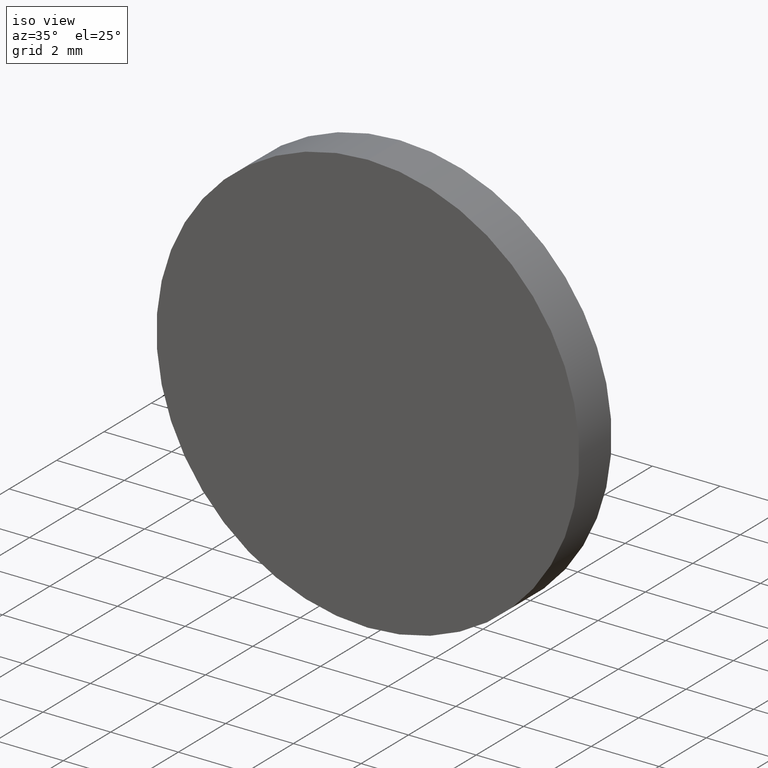
[diagram: clean part render]
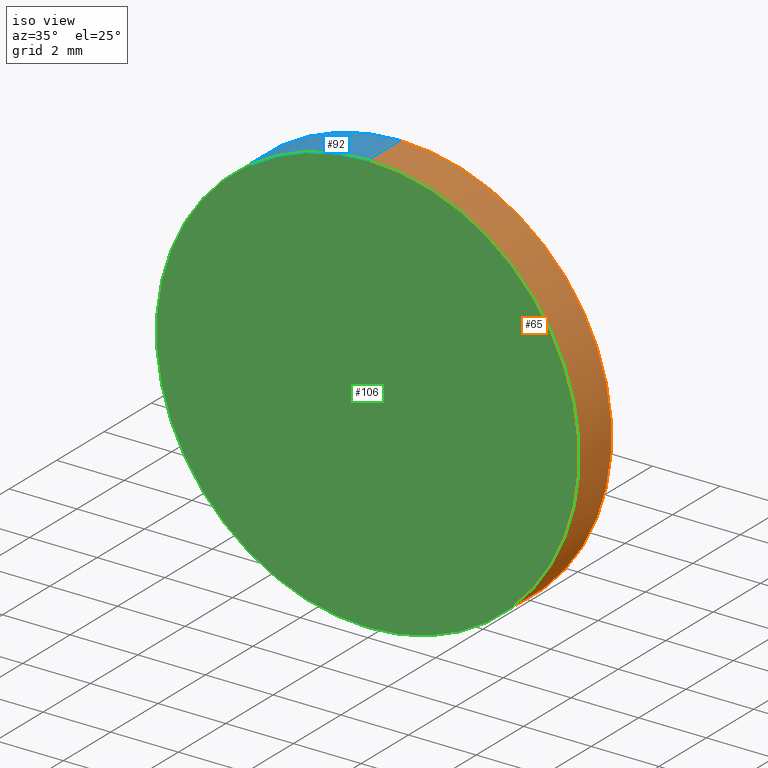
[diagram: same view with three faces highlighted in distinct colors, each labeled with its STEP entity id]
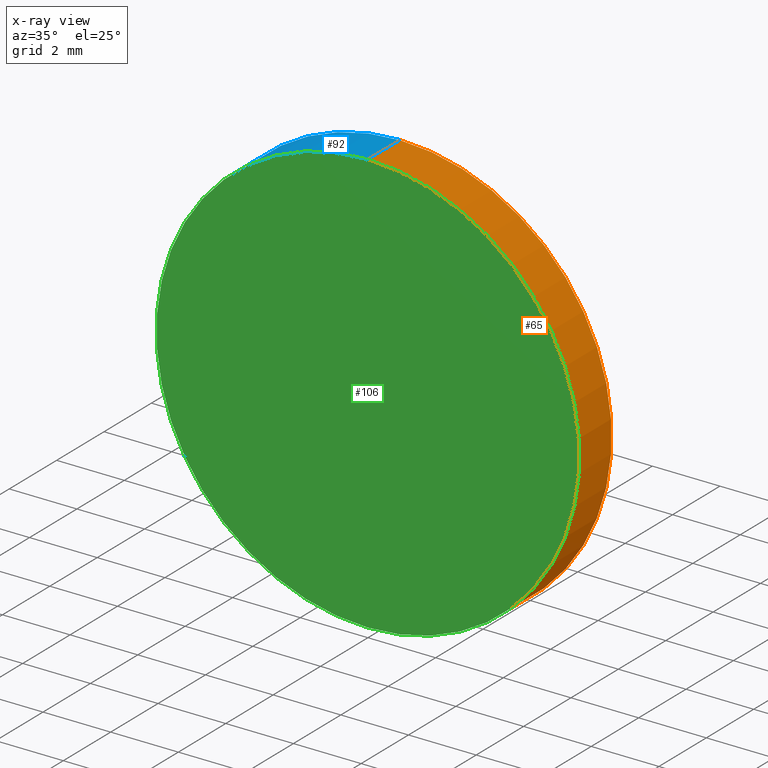
[diagram: x-ray of the same camera — body ghosted, the three highlighted faces saturated]
A machine part, iso view with three faces highlighted in distinct colors.
The next image is the same camera in x-ray (body ghosted, the three faces saturated) — at least one of them is partly hidden behind the body in this view.
Their STEP definitions:

[orange] entity #65 — the highlighted cylindrical surface (partial cylindrical patch) has radius 6.25 mm, axis along (-0, -1, -0).
#2 = VERTEX_POINT ( 'NONE', #96 ) ;
#7 = EDGE_LOOP ( 'NONE', ( #26, #88, #37, #138 ) ) ;
#11 = DIRECTION ( 'NONE',  ( 0.0000000000000000000, 0.0000000000000000000, 1.000000000000000000 ) ) ;
#14 = CARTESIAN_POINT ( 'NONE',  ( 7.654042494670957600E-016, 1.360000000000000100, 6.250000000000000000 ) ) ;
#17 = CIRCLE ( 'NONE', #69, 6.250000000000000000 ) ;
#24 = CARTESIAN_POINT ( 'NONE',  ( 0.0000000000000000000, 1.360000000000000100, 0.0000000000000000000 ) ) ;
#26 = ORIENTED_EDGE ( 'NONE', *, *, #73, .F. ) ;
#32 = DIRECTION ( 'NONE',  ( 0.0000000000000000000, 1.000000000000000000, 0.0000000000000000000 ) ) ;
#34 = EDGE_CURVE ( 'NONE', #47, #2, #17, .T. ) ;
#37 = ORIENTED_EDGE ( 'NONE', *, *, #34, .T. ) ;
#45 = EDGE_CURVE ( 'NONE', #114, #2, #102, .T. ) ;
#47 = VERTEX_POINT ( 'NONE', #112 ) ;
#49 = DIRECTION ( 'NONE',  ( 0.0000000000000000000, 0.0000000000000000000, -1.000000000000000000 ) ) ;
#51 = CYLINDRICAL_SURFACE ( 'NONE', #130, 6.250000000000000000 ) ;
#62 = CARTESIAN_POINT ( 'NONE',  ( 0.0000000000000000000, 1.360000000000000100, -6.250000000000000000 ) ) ;
#63 = DIRECTION ( 'NONE',  ( -0.0000000000000000000, -1.000000000000000000, -0.0000000000000000000 ) ) ;
#65 = ADVANCED_FACE ( 'NONE', ( #95 ), #51, .T. ) ;
#69 = AXIS2_PLACEMENT_3D ( 'NONE', #134, #32, #97 ) ;
#71 = EDGE_CURVE ( 'NONE', #124, #47, #131, .T. ) ;
#72 = CARTESIAN_POINT ( 'NONE',  ( 0.0000000000000000000, 1.360000000000000100, 0.0000000000000000000 ) ) ;
#73 = EDGE_CURVE ( 'NONE', #124, #114, #109, .T. ) ;
#77 = DIRECTION ( 'NONE',  ( -0.0000000000000000000, -1.000000000000000000, -0.0000000000000000000 ) ) ;
#85 = CARTESIAN_POINT ( 'NONE',  ( 7.654042494670957600E-016, 1.360000000000000100, 6.250000000000000000 ) ) ;
#87 = DIRECTION ( 'NONE',  ( -0.0000000000000000000, -1.000000000000000000, -0.0000000000000000000 ) ) ;
#88 = ORIENTED_EDGE ( 'NONE', *, *, #71, .T. ) ;
#95 = FACE_OUTER_BOUND ( 'NONE', #7, .T. ) ;
#96 = CARTESIAN_POINT ( 'NONE',  ( 0.0000000000000000000, 0.0000000000000000000, -6.250000000000000000 ) ) ;
#97 = DIRECTION ( 'NONE',  ( 0.0000000000000000000, 0.0000000000000000000, 1.000000000000000000 ) ) ;
#98 = VECTOR ( 'NONE', #77, 1000.000000000000000 ) ;
#102 = LINE ( 'NONE', #62, #98 ) ;
#109 = CIRCLE ( 'NONE', #110, 6.250000000000000000 ) ;
#110 = AXIS2_PLACEMENT_3D ( 'NONE', #72, #137, #11 ) ;
#112 = CARTESIAN_POINT ( 'NONE',  ( 7.654042494670957600E-016, 0.0000000000000000000, 6.250000000000000000 ) ) ;
#113 = CARTESIAN_POINT ( 'NONE',  ( 0.0000000000000000000, 1.360000000000000100, -6.250000000000000000 ) ) ;
#114 = VERTEX_POINT ( 'NONE', #113 ) ;
#124 = VERTEX_POINT ( 'NONE', #14 ) ;
#127 = VECTOR ( 'NONE', #87, 1000.000000000000000 ) ;
#130 = AXIS2_PLACEMENT_3D ( 'NONE', #24, #63, #49 ) ;
#131 = LINE ( 'NONE', #85, #127 ) ;
#134 = CARTESIAN_POINT ( 'NONE',  ( 0.0000000000000000000, 0.0000000000000000000, 0.0000000000000000000 ) ) ;
#137 = DIRECTION ( 'NONE',  ( 0.0000000000000000000, 1.000000000000000000, 0.0000000000000000000 ) ) ;
#138 = ORIENTED_EDGE ( 'NONE', *, *, #45, .F. ) ;

[blue] entity #92 — the highlighted cylindrical surface (partial cylindrical patch) has radius 6.25 mm, axis along (-0, -1, -0).
#2 = VERTEX_POINT ( 'NONE', #96 ) ;
#6 = CIRCLE ( 'NONE', #93, 6.250000000000000000 ) ;
#13 = CIRCLE ( 'NONE', #81, 6.250000000000000000 ) ;
#14 = CARTESIAN_POINT ( 'NONE',  ( 7.654042494670957600E-016, 1.360000000000000100, 6.250000000000000000 ) ) ;
#16 = EDGE_LOOP ( 'NONE', ( #101, #83, #50, #40 ) ) ;
#18 = AXIS2_PLACEMENT_3D ( 'NONE', #76, #103, #90 ) ;
#29 = DIRECTION ( 'NONE',  ( 0.0000000000000000000, 1.000000000000000000, 0.0000000000000000000 ) ) ;
#40 = ORIENTED_EDGE ( 'NONE', *, *, #64, .T. ) ;
#45 = EDGE_CURVE ( 'NONE', #114, #2, #102, .T. ) ;
#47 = VERTEX_POINT ( 'NONE', #112 ) ;
#50 = ORIENTED_EDGE ( 'NONE', *, *, #45, .T. ) ;
#52 = EDGE_CURVE ( 'NONE', #114, #124, #13, .T. ) ;
#54 = DIRECTION ( 'NONE',  ( 0.0000000000000000000, 0.0000000000000000000, 1.000000000000000000 ) ) ;
#58 = DIRECTION ( 'NONE',  ( 0.0000000000000000000, 1.000000000000000000, 0.0000000000000000000 ) ) ;
#59 = CYLINDRICAL_SURFACE ( 'NONE', #18, 6.250000000000000000 ) ;
#62 = CARTESIAN_POINT ( 'NONE',  ( 0.0000000000000000000, 1.360000000000000100, -6.250000000000000000 ) ) ;
#64 = EDGE_CURVE ( 'NONE', #2, #47, #6, .T. ) ;
#70 = CARTESIAN_POINT ( 'NONE',  ( 0.0000000000000000000, 0.0000000000000000000, 0.0000000000000000000 ) ) ;
#71 = EDGE_CURVE ( 'NONE', #124, #47, #131, .T. ) ;
#75 = DIRECTION ( 'NONE',  ( 0.0000000000000000000, 0.0000000000000000000, 1.000000000000000000 ) ) ;
#76 = CARTESIAN_POINT ( 'NONE',  ( 0.0000000000000000000, 1.360000000000000100, 0.0000000000000000000 ) ) ;
#77 = DIRECTION ( 'NONE',  ( -0.0000000000000000000, -1.000000000000000000, -0.0000000000000000000 ) ) ;
#81 = AXIS2_PLACEMENT_3D ( 'NONE', #123, #58, #54 ) ;
#83 = ORIENTED_EDGE ( 'NONE', *, *, #52, .F. ) ;
#85 = CARTESIAN_POINT ( 'NONE',  ( 7.654042494670957600E-016, 1.360000000000000100, 6.250000000000000000 ) ) ;
#87 = DIRECTION ( 'NONE',  ( -0.0000000000000000000, -1.000000000000000000, -0.0000000000000000000 ) ) ;
#90 = DIRECTION ( 'NONE',  ( 0.0000000000000000000, 0.0000000000000000000, -1.000000000000000000 ) ) ;
#92 = ADVANCED_FACE ( 'NONE', ( #121 ), #59, .T. ) ;
#93 = AXIS2_PLACEMENT_3D ( 'NONE', #70, #29, #75 ) ;
#96 = CARTESIAN_POINT ( 'NONE',  ( 0.0000000000000000000, 0.0000000000000000000, -6.250000000000000000 ) ) ;
#98 = VECTOR ( 'NONE', #77, 1000.000000000000000 ) ;
#101 = ORIENTED_EDGE ( 'NONE', *, *, #71, .F. ) ;
#102 = LINE ( 'NONE', #62, #98 ) ;
#103 = DIRECTION ( 'NONE',  ( -0.0000000000000000000, -1.000000000000000000, -0.0000000000000000000 ) ) ;
#112 = CARTESIAN_POINT ( 'NONE',  ( 7.654042494670957600E-016, 0.0000000000000000000, 6.250000000000000000 ) ) ;
#113 = CARTESIAN_POINT ( 'NONE',  ( 0.0000000000000000000, 1.360000000000000100, -6.250000000000000000 ) ) ;
#114 = VERTEX_POINT ( 'NONE', #113 ) ;
#121 = FACE_OUTER_BOUND ( 'NONE', #16, .T. ) ;
#123 = CARTESIAN_POINT ( 'NONE',  ( 0.0000000000000000000, 1.360000000000000100, 0.0000000000000000000 ) ) ;
#124 = VERTEX_POINT ( 'NONE', #14 ) ;
#127 = VECTOR ( 'NONE', #87, 1000.000000000000000 ) ;
#131 = LINE ( 'NONE', #85, #127 ) ;

[green] entity #106 — the highlighted planar face has unit normal (0, 1, 0).
#2 = VERTEX_POINT ( 'NONE', #96 ) ;
#6 = CIRCLE ( 'NONE', #93, 6.250000000000000000 ) ;
#15 = EDGE_LOOP ( 'NONE', ( #120, #116 ) ) ;
#17 = CIRCLE ( 'NONE', #69, 6.250000000000000000 ) ;
#27 = DIRECTION ( 'NONE',  ( 0.0000000000000000000, -0.0000000000000000000, 1.000000000000000000 ) ) ;
#28 = FACE_OUTER_BOUND ( 'NONE', #15, .T. ) ;
#29 = DIRECTION ( 'NONE',  ( 0.0000000000000000000, 1.000000000000000000, 0.0000000000000000000 ) ) ;
#32 = DIRECTION ( 'NONE',  ( 0.0000000000000000000, 1.000000000000000000, 0.0000000000000000000 ) ) ;
#34 = EDGE_CURVE ( 'NONE', #47, #2, #17, .T. ) ;
#39 = AXIS2_PLACEMENT_3D ( 'NONE', #74, #111, #27 ) ;
#47 = VERTEX_POINT ( 'NONE', #112 ) ;
#64 = EDGE_CURVE ( 'NONE', #2, #47, #6, .T. ) ;
#69 = AXIS2_PLACEMENT_3D ( 'NONE', #134, #32, #97 ) ;
#70 = CARTESIAN_POINT ( 'NONE',  ( 0.0000000000000000000, 0.0000000000000000000, 0.0000000000000000000 ) ) ;
#74 = CARTESIAN_POINT ( 'NONE',  ( 0.0000000000000000000, 0.0000000000000000000, 0.0000000000000000000 ) ) ;
#75 = DIRECTION ( 'NONE',  ( 0.0000000000000000000, 0.0000000000000000000, 1.000000000000000000 ) ) ;
#93 = AXIS2_PLACEMENT_3D ( 'NONE', #70, #29, #75 ) ;
#96 = CARTESIAN_POINT ( 'NONE',  ( 0.0000000000000000000, 0.0000000000000000000, -6.250000000000000000 ) ) ;
#97 = DIRECTION ( 'NONE',  ( 0.0000000000000000000, 0.0000000000000000000, 1.000000000000000000 ) ) ;
#106 = ADVANCED_FACE ( 'NONE', ( #28 ), #119, .F. ) ;
#111 = DIRECTION ( 'NONE',  ( 0.0000000000000000000, 1.000000000000000000, 0.0000000000000000000 ) ) ;
#112 = CARTESIAN_POINT ( 'NONE',  ( 7.654042494670957600E-016, 0.0000000000000000000, 6.250000000000000000 ) ) ;
#116 = ORIENTED_EDGE ( 'NONE', *, *, #34, .F. ) ;
#119 = PLANE ( 'NONE',  #39 ) ;
#120 = ORIENTED_EDGE ( 'NONE', *, *, #64, .F. ) ;
#134 = CARTESIAN_POINT ( 'NONE',  ( 0.0000000000000000000, 0.0000000000000000000, 0.0000000000000000000 ) ) ;